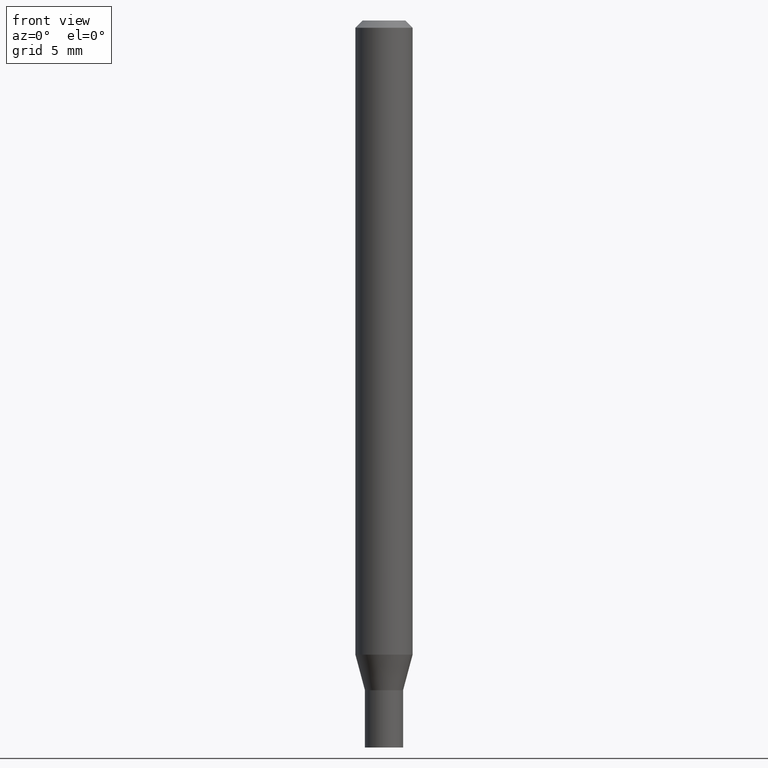
[diagram: clean part render]
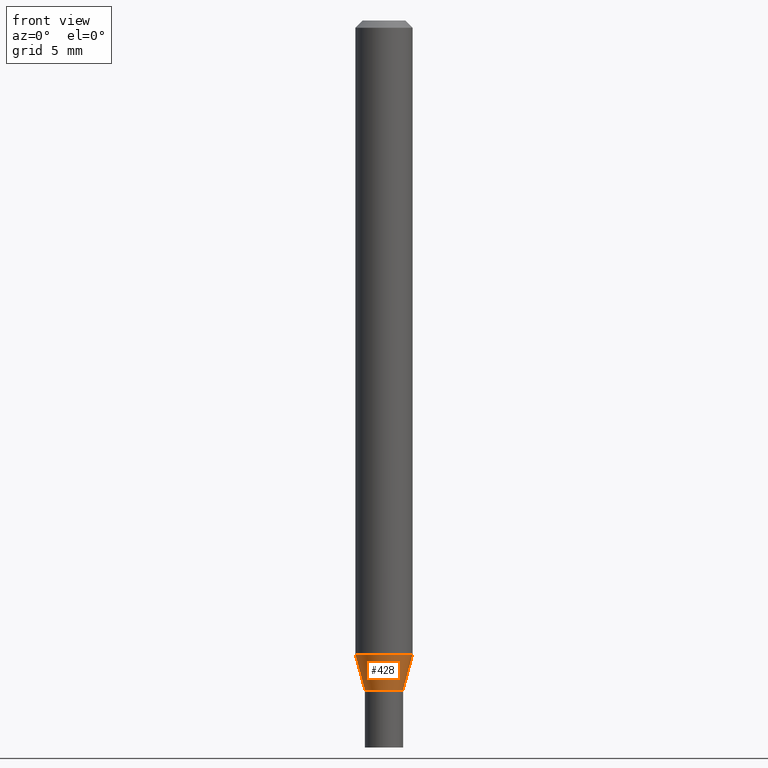
[diagram: same view with one face highlighted and labeled with its STEP entity id]
A machine part, front view. The second image highlights one B-rep face of the part: STEP entity #428.
In plain terms, the highlighted conical surface has half-angle 15 deg.
Its self-contained STEP definition (entity closure, byte-faithful):
#13 = ORIENTED_EDGE ( 'NONE', *, *, #371, .F. ) ;
#23 = VECTOR ( 'NONE', #318, 39.37007874015748854 ) ;
#38 = CARTESIAN_POINT ( 'NONE',  ( 0.03934999999999993364, -5.099657643514298173E-15, -1.381900000000000350 ) ) ;
#46 = VERTEX_POINT ( 'NONE', #238 ) ;
#50 = VECTOR ( 'NONE', #242, 39.37007874015748854 ) ;
#59 = LINE ( 'NONE', #463, #50 ) ;
#67 = CARTESIAN_POINT ( 'NONE',  ( 3.379393343267241015E-29, -4.824878062147344045E-15, -1.381900000000000350 ) ) ;
#96 = DIRECTION ( 'NONE',  ( -2.445468806185136597E-29, 3.491481338843145583E-15, 1.000000000000000000 ) ) ;
#97 = CARTESIAN_POINT ( 'NONE',  ( 3.379393343267241015E-29, -4.824878062147344045E-15, -1.381900000000000350 ) ) ;
#102 = LINE ( 'NONE', #38, #23 ) ;
#110 = CIRCLE ( 'NONE', #382, 0.03934999999999993364 ) ;
#116 = ORIENTED_EDGE ( 'NONE', *, *, #445, .F. ) ;
#119 = CARTESIAN_POINT ( 'NONE',  ( 3.199599050756987901E-29, -4.568179462867591539E-15, -1.308378599090893157 ) ) ;
#135 = CARTESIAN_POINT ( 'NONE',  ( -0.05904999999999999832, -4.148603977401252046E-15, -1.308378599090893157 ) ) ;
#141 = ORIENTED_EDGE ( 'NONE', *, *, #375, .T. ) ;
#142 = DIRECTION ( 'NONE',  ( -2.445468806185136597E-29, 3.491481338843145583E-15, 1.000000000000000000 ) ) ;
#182 = CONICAL_SURFACE ( 'NONE', #196, 0.03934999999999993364, 0.2617993877991493523 ) ;
#186 = EDGE_LOOP ( 'NONE', ( #13, #141, #385, #116 ) ) ;
#188 = DIRECTION ( 'NONE',  ( 1.000000000000000000, -6.982962677686256455E-15, 0.000000000000000000 ) ) ;
#196 = AXIS2_PLACEMENT_3D ( 'NONE', #67, #220, #188 ) ;
#209 = CARTESIAN_POINT ( 'NONE',  ( 0.05904999999999999832, -4.980523408984964882E-15, -1.308378599090893157 ) ) ;
#215 = EDGE_CURVE ( 'NONE', #46, #216, #102, .T. ) ;
#216 = VERTEX_POINT ( 'NONE', #209 ) ;
#220 = DIRECTION ( 'NONE',  ( -2.445468806185136597E-29, 3.491481338843145583E-15, 1.000000000000000000 ) ) ;
#238 = CARTESIAN_POINT ( 'NONE',  ( 0.03934999999999993364, -5.099657643514298173E-15, -1.381900000000000350 ) ) ;
#242 = DIRECTION ( 'NONE',  ( -0.2588190451025206285, 5.211531920934544731E-15, 0.9659258262890682012 ) ) ;
#276 = VERTEX_POINT ( 'NONE', #135 ) ;
#318 = DIRECTION ( 'NONE',  ( 0.2588190451025206285, 1.565188264969627095E-15, 0.9659258262890682012 ) ) ;
#321 = AXIS2_PLACEMENT_3D ( 'NONE', #119, #142, #372 ) ;
#357 = FACE_OUTER_BOUND ( 'NONE', #186, .T. ) ;
#371 = EDGE_CURVE ( 'NONE', #413, #276, #59, .T. ) ;
#372 = DIRECTION ( 'NONE',  ( 1.000000000000000000, -6.982962677686273021E-15, 0.000000000000000000 ) ) ;
#375 = EDGE_CURVE ( 'NONE', #413, #46, #110, .T. ) ;
#382 = AXIS2_PLACEMENT_3D ( 'NONE', #97, #96, #395 ) ;
#385 = ORIENTED_EDGE ( 'NONE', *, *, #215, .T. ) ;
#395 = DIRECTION ( 'NONE',  ( 1.000000000000000000, -6.982962677686256455E-15, 0.000000000000000000 ) ) ;
#413 = VERTEX_POINT ( 'NONE', #460 ) ;
#428 = ADVANCED_FACE ( 'NONE', ( #357 ), #182, .T. ) ;
#445 = EDGE_CURVE ( 'NONE', #276, #216, #450, .T. ) ;
#450 = CIRCLE ( 'NONE', #321, 0.05904999999999999832 ) ;
#460 = CARTESIAN_POINT ( 'NONE',  ( -0.03934999999999993364, -4.346941736513498348E-15, -1.381900000000000350 ) ) ;
#463 = CARTESIAN_POINT ( 'NONE',  ( -0.03934999999999993364, -4.545279495625745439E-15, -1.381900000000000350 ) ) ;